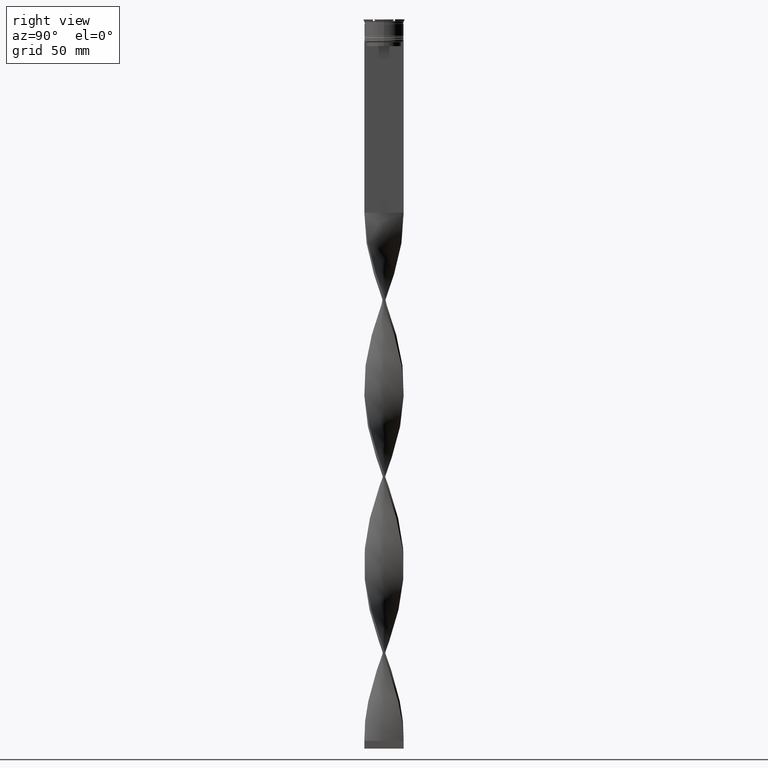
[diagram: clean part render]
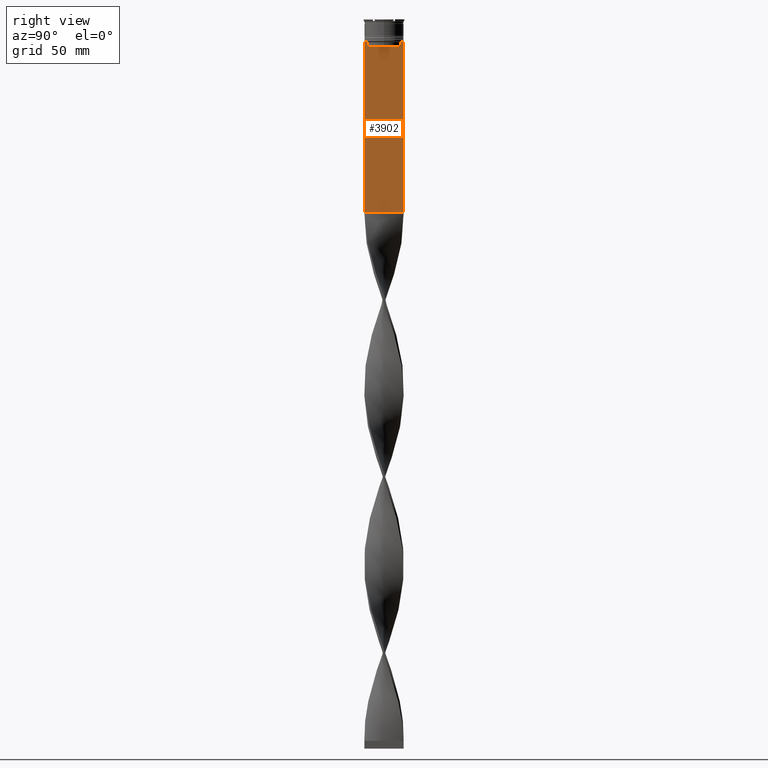
[diagram: same view with one face highlighted and labeled with its STEP entity id]
A machine part, right view. The second image highlights one B-rep face of the part: STEP entity #3902.
In plain terms, the highlighted planar face has unit normal (-1, 0, 0).
Its self-contained STEP definition (entity closure, byte-faithful):
#5 = CARTESIAN_POINT ( 'NONE',  ( 0.7500000000000002220, -12.50000000000000000, -123.0000000000000000 ) ) ;
#24 = DIRECTION ( 'NONE',  ( 0.000000000000000000, -1.000000000000000000, 0.000000000000000000 ) ) ;
#46 = ORIENTED_EDGE ( 'NONE', *, *, #2389, .T. ) ;
#82 = ORIENTED_EDGE ( 'NONE', *, *, #4283, .T. ) ;
#148 = CARTESIAN_POINT ( 'NONE',  ( 0.7500000000000002220, 12.50000000000000000, 11.04495957273638673 ) ) ;
#166 = ORIENTED_EDGE ( 'NONE', *, *, #4332, .T. ) ;
#168 = DIRECTION ( 'NONE',  ( 0.000000000000000000, 1.000000000000000000, 0.000000000000000000 ) ) ;
#203 = CARTESIAN_POINT ( 'NONE',  ( 0.7500000000000002220, -12.37729776647553059, -14.00000000000000178 ) ) ;
#209 = AXIS2_PLACEMENT_3D ( 'NONE', #4640, #3934, #717 ) ;
#224 = CARTESIAN_POINT ( 'NONE',  ( 0.7500000000000002220, -12.50000000000000000, -14.00000000000000178 ) ) ;
#315 = CARTESIAN_POINT ( 'NONE',  ( 0.7500000000000002220, 11.04122051153452055, -14.33334204648729404 ) ) ;
#392 = EDGE_CURVE ( 'NONE', #3515, #2475, #3341, .T. ) ;
#717 = DIRECTION ( 'NONE',  ( 0.000000000000000000, 0.000000000000000000, 1.000000000000000000 ) ) ;
#740 = EDGE_CURVE ( 'NONE', #3853, #2772, #3776, .T. ) ;
#777 = CARTESIAN_POINT ( 'NONE',  ( 0.7500000000000002220, -12.50000000000000000, -14.00000000000000178 ) ) ;
#806 = EDGE_CURVE ( 'NONE', #2772, #1026, #1576, .T. ) ;
#826 = DIRECTION ( 'NONE',  ( 0.000000000000000000, 0.000000000000000000, -1.000000000000000000 ) ) ;
#892 = CARTESIAN_POINT ( 'NONE',  ( 0.7500000000000002220, -11.37530219378809093, -14.00000000000000178 ) ) ;
#977 = ORIENTED_EDGE ( 'NONE', *, *, #2617, .T. ) ;
#1015 = DIRECTION ( 'NONE',  ( 0.000000000000000000, -1.000000000000000000, 0.000000000000000000 ) ) ;
#1026 = VERTEX_POINT ( 'NONE', #203 ) ;
#1044 = FACE_OUTER_BOUND ( 'NONE', #1939, .T. ) ;
#1060 = CARTESIAN_POINT ( 'NONE',  ( 0.7500000000000002220, 11.20826531587977648, -14.16667499681701514 ) ) ;
#1063 = CARTESIAN_POINT ( 'NONE',  ( 0.7500000000000002220, -10.87416663473574197, -14.50000000000000000 ) ) ;
#1064 = VERTEX_POINT ( 'NONE', #1534 ) ;
#1084 = ORIENTED_EDGE ( 'NONE', *, *, #3958, .F. ) ;
#1128 = LINE ( 'NONE', #148, #2462 ) ;
#1190 = ORIENTED_EDGE ( 'NONE', *, *, #806, .T. ) ;
#1287 = ORIENTED_EDGE ( 'NONE', *, *, #1622, .T. ) ;
#1323 = CARTESIAN_POINT ( 'NONE',  ( 0.7500000000000002220, -12.50000000000000000, -14.00000000000000178 ) ) ;
#1363 = CARTESIAN_POINT ( 'NONE',  ( 0.7500000000000002220, 10.90000000000000213, -17.00000000000000000 ) ) ;
#1534 = CARTESIAN_POINT ( 'NONE',  ( 0.7500000000000002220, 11.37530219378809093, -14.00000000000000178 ) ) ;
#1576 = LINE ( 'NONE', #224, #1758 ) ;
#1622 = EDGE_CURVE ( 'NONE', #2436, #1064, #4263, .T. ) ;
#1699 = VECTOR ( 'NONE', #1015, 1000.000000000000000 ) ;
#1701 = CARTESIAN_POINT ( 'NONE',  ( 0.7500000000000002220, 12.37729776647553059, -14.00000000000000178 ) ) ;
#1732 = VERTEX_POINT ( 'NONE', #4041 ) ;
#1758 = VECTOR ( 'NONE', #3462, 1000.000000000000000 ) ;
#1817 = ORIENTED_EDGE ( 'NONE', *, *, #3294, .T. ) ;
#1856 = LINE ( 'NONE', #3359, #4338 ) ;
#1857 = LINE ( 'NONE', #3711, #2161 ) ;
#1874 = DIRECTION ( 'NONE',  ( 0.000000000000000000, 0.000000000000000000, -1.000000000000000000 ) ) ;
#1939 = EDGE_LOOP ( 'NONE', ( #1287, #977, #3940, #2219, #2466, #2529, #1190, #46, #166, #1817, #1084, #82 ) ) ;
#2115 = VERTEX_POINT ( 'NONE', #4120 ) ;
#2125 = CARTESIAN_POINT ( 'NONE',  ( 0.7500000000000002220, -11.04122051801870441, -14.33334204001847567 ) ) ;
#2161 = VECTOR ( 'NONE', #2314, 1000.000000000000000 ) ;
#2212 = CARTESIAN_POINT ( 'NONE',  ( 0.7500000000000002220, 11.37530219378809093, -14.00000000000000178 ) ) ;
#2219 = ORIENTED_EDGE ( 'NONE', *, *, #3355, .T. ) ;
#2314 = DIRECTION ( 'NONE',  ( -0.000000000000000000, -0.000000000000000000, 1.000000000000000000 ) ) ;
#2389 = EDGE_CURVE ( 'NONE', #1026, #2420, #3482, .T. ) ;
#2420 = VERTEX_POINT ( 'NONE', #4166 ) ;
#2429 = CARTESIAN_POINT ( 'NONE',  ( 0.7500000000000002220, -11.20826532207830439, -14.16667499063191826 ) ) ;
#2436 = VERTEX_POINT ( 'NONE', #1701 ) ;
#2453 = DIRECTION ( 'NONE',  ( 0.000000000000000000, -1.000000000000000000, 0.000000000000000000 ) ) ;
#2462 = VECTOR ( 'NONE', #826, 1000.000000000000000 ) ;
#2466 = ORIENTED_EDGE ( 'NONE', *, *, #3964, .T. ) ;
#2475 = VERTEX_POINT ( 'NONE', #2912 ) ;
#2529 = ORIENTED_EDGE ( 'NONE', *, *, #740, .T. ) ;
#2534 = VECTOR ( 'NONE', #2635, 1000.000000000000000 ) ;
#2598 = CARTESIAN_POINT ( 'NONE',  ( 0.7500000000000002220, 10.87416663473574197, 0.000000000000000000 ) ) ;
#2617 = EDGE_CURVE ( 'NONE', #1064, #3515, #3589, .T. ) ;
#2635 = DIRECTION ( 'NONE',  ( 0.000000000000000000, -1.000000000000000000, 0.000000000000000000 ) ) ;
#2644 = DIRECTION ( 'NONE',  ( 0.000000000000000000, 0.000000000000000000, -1.000000000000000000 ) ) ;
#2772 = VERTEX_POINT ( 'NONE', #892 ) ;
#2826 = CARTESIAN_POINT ( 'NONE',  ( 0.7500000000000002220, 10.87416663473574197, -14.50000000000000000 ) ) ;
#2912 = CARTESIAN_POINT ( 'NONE',  ( 0.7500000000000002220, 10.87416663473574019, -17.00000000000000000 ) ) ;
#2973 = VECTOR ( 'NONE', #24, 1000.000000000000000 ) ;
#3053 = CARTESIAN_POINT ( 'NONE',  ( 0.7500000000000002220, -12.50000000000000000, -123.0000000000000000 ) ) ;
#3212 = LINE ( 'NONE', #1363, #2973 ) ;
#3294 = EDGE_CURVE ( 'NONE', #3335, #3811, #3380, .T. ) ;
#3335 = VERTEX_POINT ( 'NONE', #5 ) ;
#3341 = LINE ( 'NONE', #2598, #3628 ) ;
#3355 = EDGE_CURVE ( 'NONE', #2475, #1732, #3212, .T. ) ;
#3359 = CARTESIAN_POINT ( 'NONE',  ( 0.7500000000000002220, -12.50000000000000000, 11.04495957273638673 ) ) ;
#3380 = LINE ( 'NONE', #3053, #4106 ) ;
#3421 = VECTOR ( 'NONE', #2453, 1000.000000000000000 ) ;
#3462 = DIRECTION ( 'NONE',  ( 0.000000000000000000, -1.000000000000000000, 0.000000000000000000 ) ) ;
#3482 = LINE ( 'NONE', #1323, #3421 ) ;
#3515 = VERTEX_POINT ( 'NONE', #4633 ) ;
#3554 = PLANE ( 'NONE',  #209 ) ;
#3589 = B_SPLINE_CURVE_WITH_KNOTS ( 'NONE', 3,
 ( #2212, #1060, #315, #2826 ),
 .UNSPECIFIED., .F., .F.,
 ( 4, 4 ),
 ( 0.01936090553552769281, 0.02006881572333104116 ),
 .UNSPECIFIED. ) ;
#3628 = VECTOR ( 'NONE', #2644, 1000.000000000000000 ) ;
#3711 = CARTESIAN_POINT ( 'NONE',  ( 0.7500000000000002220, -10.87416663473574197, 0.000000000000000000 ) ) ;
#3776 = B_SPLINE_CURVE_WITH_KNOTS ( 'NONE', 3,
 ( #4614, #2125, #2429, #3865 ),
 .UNSPECIFIED., .F., .F.,
 ( 4, 4 ),
 ( 0.05009718908159448147, 0.05081156920313959630 ),
 .UNSPECIFIED. ) ;
#3811 = VERTEX_POINT ( 'NONE', #4070 ) ;
#3853 = VERTEX_POINT ( 'NONE', #1063 ) ;
#3865 = CARTESIAN_POINT ( 'NONE',  ( 0.7500000000000002220, -11.37530219378809093, -14.00000000000000178 ) ) ;
#3902 = ADVANCED_FACE ( 'NONE', ( #1044 ), #3554, .F. ) ;
#3934 = DIRECTION ( 'NONE',  ( -1.000000000000000000, 0.000000000000000000, 0.000000000000000000 ) ) ;
#3940 = ORIENTED_EDGE ( 'NONE', *, *, #392, .T. ) ;
#3958 = EDGE_CURVE ( 'NONE', #2115, #3811, #1128, .T. ) ;
#3964 = EDGE_CURVE ( 'NONE', #1732, #3853, #1857, .T. ) ;
#4021 = LINE ( 'NONE', #777, #2534 ) ;
#4041 = CARTESIAN_POINT ( 'NONE',  ( 0.7500000000000002220, -10.87416663473574019, -17.00000000000000000 ) ) ;
#4070 = CARTESIAN_POINT ( 'NONE',  ( 0.7500000000000002220, 12.50000000000000000, -123.0000000000000000 ) ) ;
#4106 = VECTOR ( 'NONE', #168, 1000.000000000000000 ) ;
#4120 = CARTESIAN_POINT ( 'NONE',  ( 0.7500000000000002220, 12.50000000000000000, -14.00000000000000178 ) ) ;
#4166 = CARTESIAN_POINT ( 'NONE',  ( 0.7500000000000002220, -12.50000000000000000, -14.00000000000000178 ) ) ;
#4237 = CARTESIAN_POINT ( 'NONE',  ( 0.7500000000000002220, -12.50000000000000000, -14.00000000000000178 ) ) ;
#4263 = LINE ( 'NONE', #4237, #1699 ) ;
#4283 = EDGE_CURVE ( 'NONE', #2115, #2436, #4021, .T. ) ;
#4332 = EDGE_CURVE ( 'NONE', #2420, #3335, #1856, .T. ) ;
#4338 = VECTOR ( 'NONE', #1874, 1000.000000000000000 ) ;
#4614 = CARTESIAN_POINT ( 'NONE',  ( 0.7500000000000002220, -10.87416663473574197, -14.50000000000000000 ) ) ;
#4633 = CARTESIAN_POINT ( 'NONE',  ( 0.7500000000000002220, 10.87416663473574197, -14.50000000000000000 ) ) ;
#4640 = CARTESIAN_POINT ( 'NONE',  ( 0.7500000000000002220, -12.50000000000000000, 11.04495957273638673 ) ) ;